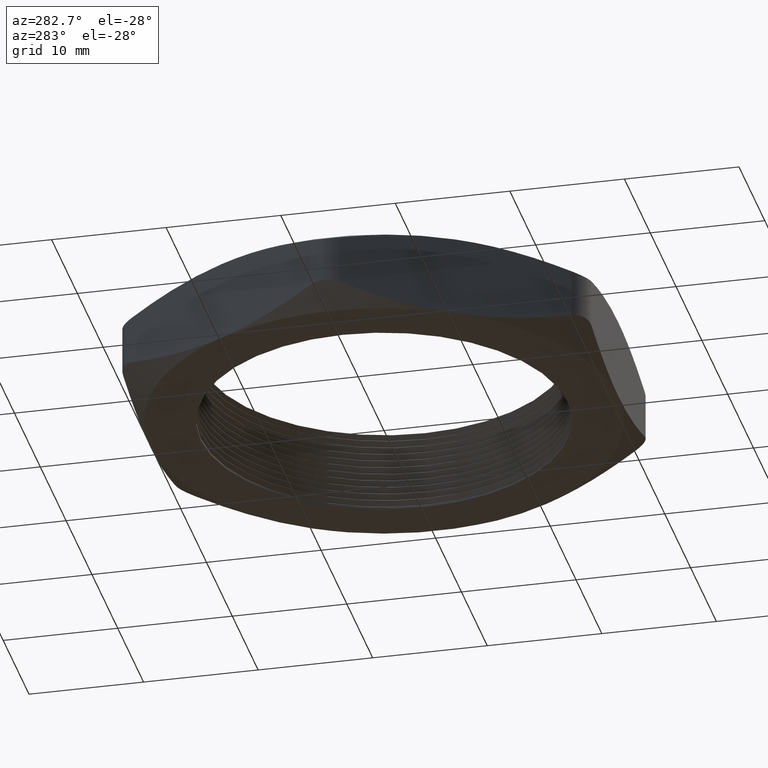
[diagram: clean part render]
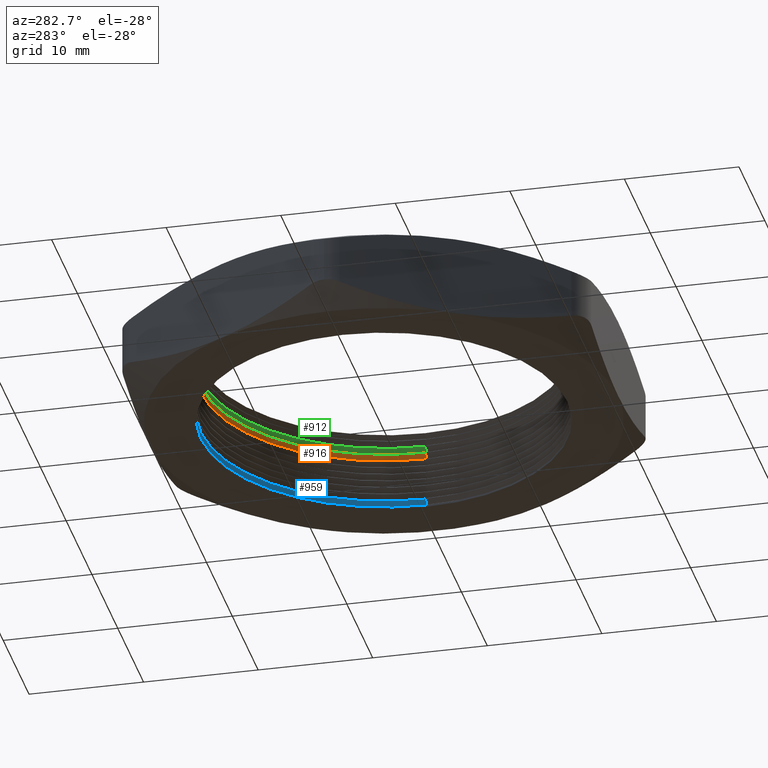
[diagram: same view with three faces highlighted in distinct colors, each labeled with its STEP entity id]
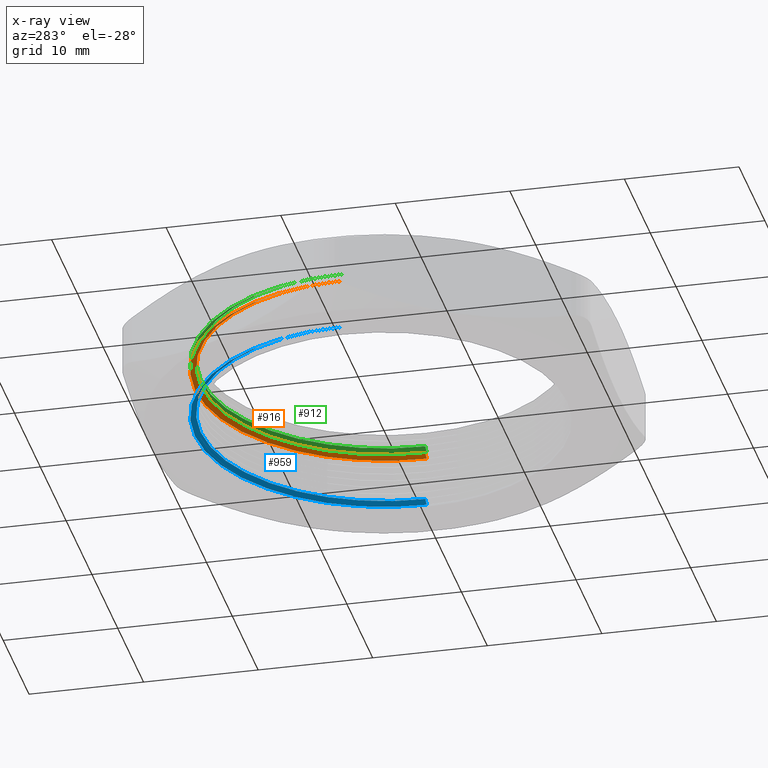
[diagram: x-ray of the same camera — body ghosted, the three highlighted faces saturated]
A machine part, auxiliary view with three faces highlighted in distinct colors.
The next image is the same camera in x-ray (body ghosted, the three faces saturated) — at least one of them is partly hidden behind the body in this view.
Their STEP definitions:

[orange] entity #916 — the highlighted conical surface has half-angle 60 deg.
#21 = VERTEX_POINT ( 'NONE', #970 ) ;
#119 = VERTEX_POINT ( 'NONE', #1318 ) ;
#122 = VERTEX_POINT ( 'NONE', #1312 ) ;
#427 = EDGE_CURVE ( 'NONE', #496, #21, #2306, .T. ) ;
#496 = VERTEX_POINT ( 'NONE', #1397 ) ;
#498 = EDGE_CURVE ( 'NONE', #496, #122, #1396, .T. ) ;
#501 = EDGE_CURVE ( 'NONE', #21, #119, #1392, .T. ) ;
#825 = ORIENTED_EDGE ( 'NONE', *, *, #827, .F. ) ;
#827 = EDGE_CURVE ( 'NONE', #122, #119, #2397, .T. ) ;
#916 = ADVANCED_FACE ( 'NONE', ( #2528 ), #2527, .F. ) ;
#917 = EDGE_LOOP ( 'NONE', ( #918, #919, #920, #825 ) ) ;
#918 = ORIENTED_EDGE ( 'NONE', *, *, #498, .F. ) ;
#919 = ORIENTED_EDGE ( 'NONE', *, *, #427, .T. ) ;
#920 = ORIENTED_EDGE ( 'NONE', *, *, #501, .T. ) ;
#970 = CARTESIAN_POINT ( 'NONE',  ( -0.6300000000000000000, 0.0000000000000000000, 0.2049999999999999900 ) ) ;
#1312 = CARTESIAN_POINT ( 'NONE',  ( 0.6500000000000000200, 7.960204194457796700E-017, 0.1934529946162076900 ) ) ;
#1318 = CARTESIAN_POINT ( 'NONE',  ( -0.6500000000000000200, 0.0000000000000000000, 0.1934529946162076900 ) ) ;
#1389 = DIRECTION ( 'NONE',  ( -0.8660254037844429300, 0.0000000000000000000, -0.4999999999999923400 ) ) ;
#1390 = VECTOR ( 'NONE', #1389, 39.37007874015748900 ) ;
#1391 = CARTESIAN_POINT ( 'NONE',  ( -0.6500000000000000200, 0.0000000000000000000, 0.1934529946162076900 ) ) ;
#1392 = LINE ( 'NONE', #1391, #1390 ) ;
#1393 = DIRECTION ( 'NONE',  ( 0.8660254037844429300, 1.060575238724912100E-016, -0.4999999999999923400 ) ) ;
#1394 = VECTOR ( 'NONE', #1393, 39.37007874015748900 ) ;
#1395 = CARTESIAN_POINT ( 'NONE',  ( 0.6500000000000000200, 7.960204194457796700E-017, 0.1934529946162076900 ) ) ;
#1396 = LINE ( 'NONE', #1395, #1394 ) ;
#1397 = CARTESIAN_POINT ( 'NONE',  ( 0.6300000000000000000, 7.715274834628325400E-017, 0.2049999999999999900 ) ) ;
#2203 = DIRECTION ( 'NONE',  ( 1.000000000000000000, 0.0000000000000000000, 0.0000000000000000000 ) ) ;
#2204 = DIRECTION ( 'NONE',  ( 0.0000000000000000000, 0.0000000000000000000, 1.000000000000000000 ) ) ;
#2205 = CARTESIAN_POINT ( 'NONE',  ( 0.0000000000000000000, 0.0000000000000000000, 0.2049999999999999900 ) ) ;
#2305 = AXIS2_PLACEMENT_3D ( 'NONE', #2205, #2204, #2203 ) ;
#2306 = CIRCLE ( 'NONE', #2305, 0.6300000000000000000 ) ;
#2394 = DIRECTION ( 'NONE',  ( 1.000000000000000000, 0.0000000000000000000, 0.0000000000000000000 ) ) ;
#2395 = DIRECTION ( 'NONE',  ( 0.0000000000000000000, 0.0000000000000000000, 1.000000000000000000 ) ) ;
#2396 = AXIS2_PLACEMENT_3D ( 'NONE', #2403, #2395, #2394 ) ;
#2397 = CIRCLE ( 'NONE', #2396, 0.6500000000000000200 ) ;
#2403 = CARTESIAN_POINT ( 'NONE',  ( 0.0000000000000000000, 0.0000000000000000000, 0.1934529946162076900 ) ) ;
#2523 = DIRECTION ( 'NONE',  ( -1.000000000000000000, 0.0000000000000000000, 0.0000000000000000000 ) ) ;
#2524 = DIRECTION ( 'NONE',  ( 0.0000000000000000000, 0.0000000000000000000, -1.000000000000000000 ) ) ;
#2525 = AXIS2_PLACEMENT_3D ( 'NONE', #2532, #2524, #2523 ) ;
#2527 = CONICAL_SURFACE ( 'NONE', #2525, 0.6500000000000000200, 1.047197551196606500 ) ;
#2528 = FACE_OUTER_BOUND ( 'NONE', #917, .T. ) ;
#2532 = CARTESIAN_POINT ( 'NONE',  ( 0.0000000000000000000, 0.0000000000000000000, 0.1934529946162076900 ) ) ;

[blue] entity #959 — the highlighted conical surface has half-angle 60 deg.
#53 = VERTEX_POINT ( 'NONE', #1082 ) ;
#54 = VERTEX_POINT ( 'NONE', #1081 ) ;
#56 = VERTEX_POINT ( 'NONE', #1035 ) ;
#83 = EDGE_CURVE ( 'NONE', #56, #95, #1051, .T. ) ;
#95 = VERTEX_POINT ( 'NONE', #1068 ) ;
#193 = EDGE_CURVE ( 'NONE', #54, #53, #1215, .T. ) ;
#279 = EDGE_CURVE ( 'NONE', #56, #54, #1882, .T. ) ;
#959 = ADVANCED_FACE ( 'NONE', ( #2601 ), #2600, .F. ) ;
#960 = EDGE_LOOP ( 'NONE', ( #961, #962, #963, #964 ) ) ;
#961 = ORIENTED_EDGE ( 'NONE', *, *, #83, .F. ) ;
#962 = ORIENTED_EDGE ( 'NONE', *, *, #279, .T. ) ;
#963 = ORIENTED_EDGE ( 'NONE', *, *, #193, .T. ) ;
#964 = ORIENTED_EDGE ( 'NONE', *, *, #965, .F. ) ;
#965 = EDGE_CURVE ( 'NONE', #95, #53, #2595, .T. ) ;
#1017 = DIRECTION ( 'NONE',  ( 0.8660254037844429300, 1.060575238724912100E-016, -0.4999999999999923400 ) ) ;
#1018 = VECTOR ( 'NONE', #1017, 39.37007874015748900 ) ;
#1019 = CARTESIAN_POINT ( 'NONE',  ( 0.6500000000000000200, 7.960204194457796700E-017, 0.01845299461620767200 ) ) ;
#1035 = CARTESIAN_POINT ( 'NONE',  ( 0.6300000000000000000, 7.715274834628325400E-017, 0.02999999999999998800 ) ) ;
#1051 = LINE ( 'NONE', #1019, #1018 ) ;
#1068 = CARTESIAN_POINT ( 'NONE',  ( 0.6500000000000000200, 7.960204194457796700E-017, 0.01845299461620767200 ) ) ;
#1081 = CARTESIAN_POINT ( 'NONE',  ( -0.6300000000000000000, 0.0000000000000000000, 0.02999999999999998800 ) ) ;
#1082 = CARTESIAN_POINT ( 'NONE',  ( -0.6500000000000000200, 0.0000000000000000000, 0.01845299461620767200 ) ) ;
#1212 = DIRECTION ( 'NONE',  ( -0.8660254037844429300, 0.0000000000000000000, -0.4999999999999923400 ) ) ;
#1213 = VECTOR ( 'NONE', #1212, 39.37007874015748900 ) ;
#1214 = CARTESIAN_POINT ( 'NONE',  ( -0.6500000000000000200, 0.0000000000000000000, 0.01845299461620767200 ) ) ;
#1215 = LINE ( 'NONE', #1214, #1213 ) ;
#1878 = DIRECTION ( 'NONE',  ( 1.000000000000000000, 0.0000000000000000000, 0.0000000000000000000 ) ) ;
#1879 = DIRECTION ( 'NONE',  ( 0.0000000000000000000, 0.0000000000000000000, 1.000000000000000000 ) ) ;
#1880 = CARTESIAN_POINT ( 'NONE',  ( 0.0000000000000000000, 0.0000000000000000000, 0.02999999999999998800 ) ) ;
#1881 = AXIS2_PLACEMENT_3D ( 'NONE', #1880, #1879, #1878 ) ;
#1882 = CIRCLE ( 'NONE', #1881, 0.6300000000000000000 ) ;
#2592 = DIRECTION ( 'NONE',  ( 1.000000000000000000, 0.0000000000000000000, 0.0000000000000000000 ) ) ;
#2593 = DIRECTION ( 'NONE',  ( 0.0000000000000000000, 0.0000000000000000000, 1.000000000000000000 ) ) ;
#2594 = AXIS2_PLACEMENT_3D ( 'NONE', #2599, #2593, #2592 ) ;
#2595 = CIRCLE ( 'NONE', #2594, 0.6500000000000000200 ) ;
#2596 = DIRECTION ( 'NONE',  ( -1.000000000000000000, 0.0000000000000000000, 0.0000000000000000000 ) ) ;
#2597 = DIRECTION ( 'NONE',  ( 0.0000000000000000000, 0.0000000000000000000, -1.000000000000000000 ) ) ;
#2598 = AXIS2_PLACEMENT_3D ( 'NONE', #2605, #2597, #2596 ) ;
#2599 = CARTESIAN_POINT ( 'NONE',  ( 0.0000000000000000000, 0.0000000000000000000, 0.01845299461620767200 ) ) ;
#2600 = CONICAL_SURFACE ( 'NONE', #2598, 0.6500000000000000200, 1.047197551196606500 ) ;
#2601 = FACE_OUTER_BOUND ( 'NONE', #960, .T. ) ;
#2605 = CARTESIAN_POINT ( 'NONE',  ( 0.0000000000000000000, 0.0000000000000000000, 0.01845299461620767200 ) ) ;

[green] entity #912 — the highlighted conical surface has half-angle 60 deg.
#324 = EDGE_CURVE ( 'NONE', #511, #328, #2059, .T. ) ;
#328 = VERTEX_POINT ( 'NONE', #2044 ) ;
#435 = EDGE_CURVE ( 'NONE', #516, #511, #2170, .T. ) ;
#502 = VERTEX_POINT ( 'NONE', #1388 ) ;
#511 = VERTEX_POINT ( 'NONE', #1429 ) ;
#516 = VERTEX_POINT ( 'NONE', #1417 ) ;
#518 = EDGE_CURVE ( 'NONE', #516, #502, #1416, .T. ) ;
#811 = ORIENTED_EDGE ( 'NONE', *, *, #518, .F. ) ;
#812 = ORIENTED_EDGE ( 'NONE', *, *, #435, .T. ) ;
#813 = ORIENTED_EDGE ( 'NONE', *, *, #324, .T. ) ;
#814 = ORIENTED_EDGE ( 'NONE', *, *, #815, .F. ) ;
#815 = EDGE_CURVE ( 'NONE', #502, #328, #2415, .T. ) ;
#912 = ADVANCED_FACE ( 'NONE', ( #2540 ), #2539, .F. ) ;
#914 = EDGE_LOOP ( 'NONE', ( #811, #812, #813, #814 ) ) ;
#1388 = CARTESIAN_POINT ( 'NONE',  ( 0.6500000000000000200, 7.960204194457796700E-017, 0.2184529946162076800 ) ) ;
#1415 = CARTESIAN_POINT ( 'NONE',  ( 0.6500000000000000200, 7.960204194457796700E-017, 0.2184529946162076800 ) ) ;
#1416 = LINE ( 'NONE', #1415, #1475 ) ;
#1417 = CARTESIAN_POINT ( 'NONE',  ( 0.6300000000000000000, 7.715274834628325400E-017, 0.2300000000000000100 ) ) ;
#1429 = CARTESIAN_POINT ( 'NONE',  ( -0.6300000000000000000, 0.0000000000000000000, 0.2300000000000000100 ) ) ;
#1474 = DIRECTION ( 'NONE',  ( 0.8660254037844429300, 1.060575238724912100E-016, -0.4999999999999923400 ) ) ;
#1475 = VECTOR ( 'NONE', #1474, 39.37007874015748900 ) ;
#2044 = CARTESIAN_POINT ( 'NONE',  ( -0.6500000000000000200, 0.0000000000000000000, 0.2184529946162076800 ) ) ;
#2056 = DIRECTION ( 'NONE',  ( -0.8660254037844429300, 0.0000000000000000000, -0.4999999999999923400 ) ) ;
#2057 = VECTOR ( 'NONE', #2056, 39.37007874015748900 ) ;
#2058 = CARTESIAN_POINT ( 'NONE',  ( -0.6500000000000000200, 0.0000000000000000000, 0.2184529946162076800 ) ) ;
#2059 = LINE ( 'NONE', #2058, #2057 ) ;
#2166 = DIRECTION ( 'NONE',  ( 1.000000000000000000, 0.0000000000000000000, 0.0000000000000000000 ) ) ;
#2167 = DIRECTION ( 'NONE',  ( 0.0000000000000000000, 0.0000000000000000000, 1.000000000000000000 ) ) ;
#2168 = CARTESIAN_POINT ( 'NONE',  ( 0.0000000000000000000, 0.0000000000000000000, 0.2300000000000000100 ) ) ;
#2169 = AXIS2_PLACEMENT_3D ( 'NONE', #2168, #2167, #2166 ) ;
#2170 = CIRCLE ( 'NONE', #2169, 0.6300000000000000000 ) ;
#2412 = DIRECTION ( 'NONE',  ( 1.000000000000000000, 0.0000000000000000000, 0.0000000000000000000 ) ) ;
#2413 = DIRECTION ( 'NONE',  ( 0.0000000000000000000, 0.0000000000000000000, 1.000000000000000000 ) ) ;
#2414 = AXIS2_PLACEMENT_3D ( 'NONE', #2420, #2413, #2412 ) ;
#2415 = CIRCLE ( 'NONE', #2414, 0.6500000000000000200 ) ;
#2420 = CARTESIAN_POINT ( 'NONE',  ( 0.0000000000000000000, 0.0000000000000000000, 0.2184529946162076800 ) ) ;
#2535 = DIRECTION ( 'NONE',  ( -1.000000000000000000, 0.0000000000000000000, 0.0000000000000000000 ) ) ;
#2536 = DIRECTION ( 'NONE',  ( 0.0000000000000000000, 0.0000000000000000000, -1.000000000000000000 ) ) ;
#2537 = AXIS2_PLACEMENT_3D ( 'NONE', #2544, #2536, #2535 ) ;
#2539 = CONICAL_SURFACE ( 'NONE', #2537, 0.6500000000000000200, 1.047197551196606500 ) ;
#2540 = FACE_OUTER_BOUND ( 'NONE', #914, .T. ) ;
#2544 = CARTESIAN_POINT ( 'NONE',  ( 0.0000000000000000000, 0.0000000000000000000, 0.2184529946162076800 ) ) ;